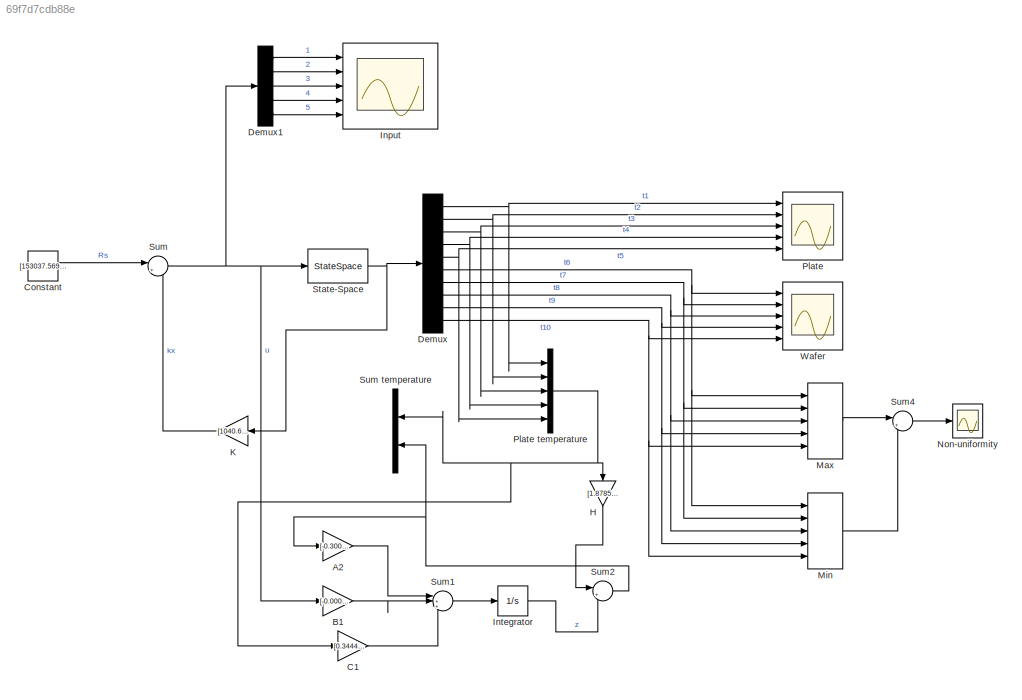
MODEL slx_69f7d7cdb88e
KIND model
CONFIG AbsTol = auto
CONFIG EnableMultiTasking = off
CONFIG FixedStep = auto
CONFIG MaxStep = auto
CONFIG MinStep = auto
CONFIG RelTol = 1e-6
CONFIG SampleTimeConstraint = Unconstrained
CONFIG SolverName = VariableStepAuto
CONFIG StartTime = 0.0
CONFIG StopTime = 500
BLOCK [Gain] A2
  Gain = [-0.300000000000000 0 0 0 0;0 -0.300000000000000 -6.93889390390723e-18 0 0;0 6.93889390390723e-18 -0.300000000000000 0 0;0 0 0 -0.300000000000000 6.93889390390723e-18;0 0 0 -3.46944695195361e-18 -0.300000000000000]
  Multiplication = Matrix(K*u)
BLOCK [Gain] B1
  Gain = [-0.000436741821281746 -0.000201465857250265 0 0 0;-6.71552857500885e-05 -0.000426624199007793 -0.000144428193774131 0 0;0 -8.66569162644783e-05 -0.000419989912703969 -0.000131560849563564 0;0 0 -9.39720354025459e-05 -0.000418421215569420 -0.000125814427560046;0 0 0 -9.78556658800356e-05 -0.000539793091271870;]
  Multiplication = Matrix(K*u)
BLOCK [Gain] C1
  Gain = [0.344431301747057 -0.0117512821095320 -0.0385532259236173 0 0;-0.00391709403651067 0.328438474570554 -0.00521863281406086 -0.0251759540060748 0;-0.00771064518472346 -0.00313117968843653 0.330223715802212 -0.00332379586198954 -0.0219313013531552;0 -0.0107896945740321 -0.00237413990142110 0.330533705208892 -0.0231878429325686;0 0 -0.0121840563073084 -0.0180054811749444 0.324419165896115]
  Multiplication = Matrix(K*u)
BLOCK [Constant] Constant
  Value = [153037.569562540;-33139.2843468048;45321.8245165428;210076.349949157;315904.445607473]
BLOCK [Demux] Demux
  Outputs = 10
  Ports = [1, 10]
BLOCK [Demux] Demux1
  Outputs = 5
  Ports = [1, 5]
BLOCK [Gain] H
  Gain = [1.87857401737166 0.866572666906799 0 0 0;0.288857555635600 1.83505470826210 0.621234420380753 0 0;0 0.372740652228452 1.80651840313430 0.565887628915702 0;0 0 0.404205449225502 1.79977090716645 0.541170327886501;0 0 0 0.420910255022834 2.32183231970792]
  Multiplication = Matrix(K*u)
BLOCK [Scope] Input
  Floating = off
  NumInputPorts = 5
  Ports = [5]
  ScopeSpecificationString = Simulink.scopes.TimeScopeBlockCfg('CurrentConfiguration', extmgr.ConfigurationSet(extmgr.Configuration('Core','General UI',true),extmgr.Configuration('Core','Source UI',true),extmgr.Configuration('Sources','WiredSimulink',true,'DataLoggingVariableName','ScopeData2'),extmgr.Configuration('Visuals','Time Domain',true,'SerializedDisplays',{struct('MinYLimReal','92.11958','MaxYLimReal','9990.62928','Y...<+1434ch>
BLOCK [Integrator] Integrator
  Ports = [1, 1]
BLOCK [Gain] K
  Gain = [1040.62101454270 -320.306170322634 -59.2252313244026 227.958918565248 240.894856638426 372.138527897946 -370.696546217003 -193.562742645483 152.368074523857 243.750083253837;-395.036959442210 1445.41180545318 3.18106966337142 -126.523424745173 -46.0693531161156 -197.976432827956 288.642703261052 -443.711626792953 -527.966761706448 -347.879849156491;294.427032872561 98.6952411671996 1588.824335740...<+476ch>
  Multiplication = Matrix(K*u)
BLOCK [MinMax] Max
  Function = max
  Inputs = 5
  Ports = [5, 1]
BLOCK [MinMax] Min
  Inputs = 5
  Ports = [5, 1]
BLOCK [Scope] Non-uniformity
  Floating = off
  NumInputPorts = 1
  Ports = [1]
  ScopeSpecificationString = Simulink.scopes.TimeScopeBlockCfg('CurrentConfiguration', extmgr.ConfigurationSet(extmgr.Configuration('Core','General UI',true),extmgr.Configuration('Core','Source UI',true),extmgr.Configuration('Sources','WiredSimulink',true,'DataLoggingVariableName','ScopeData1'),extmgr.Configuration('Visuals','Time Domain',true,'SerializedDisplays',{struct('MinYLimReal','-3.17621','MaxYLimReal','28.58593','YLa...<+1460ch>
BLOCK [Scope] Plate
  Floating = off
  NumInputPorts = 5
  Ports = [5]
  ScopeSpecificationString = Simulink.scopes.TimeScopeBlockCfg('CurrentConfiguration', extmgr.ConfigurationSet(extmgr.Configuration('Core','General UI',true),extmgr.Configuration('Core','Source UI',true),extmgr.Configuration('Sources','WiredSimulink',true),extmgr.Configuration('Visuals','Time Domain',true,'SerializedDisplays',{struct('MinYLimReal','89.43063','MaxYLimReal','169.72871','YLabelReal','','MinYLimMag','89.43063','M...<+1748ch>
BLOCK [Mux] Plate temperature
  DisplayOption = bar
  Inputs = 5
  Ports = [5, 1]
BLOCK [StateSpace] State-Space
  A = [-0.117855659679215 0.0620590628252506 0 0 0 0.0557965968539647 0 0 0 0;0.0206863542750835 -0.120972267946796 0.0444893168177479 0 0 0 0.0557965968539647 0 0 0;0 0.0266935900906488 -0.123015877698588 0.0405256907539742 0 0 0 0.0557965968539647 0 0;0 0 0.0289469219671245 -0.123499095427663 0.0387555766065743 0 0 0 0.0557965968539647 0;0 0 0 0.0301432262495578 -0.0860418872487965 0 0 0 0 0.055796596...<+409ch>
  B = [0.000232485820224853 0 0 0 0;0 0.000232485820224853 0 0 0;0 0 0.000232485820224853 0 0;0 0 0 0.000232485820224853 0;0 0 0 0 0.000232485820224853;0 0 0 0 0;0 0 0 0 0;0 0 0 0 0;0 0 0 0 0;0 0 0 0 0]
  C = [1 0 0 0 0 0 0 0 0 0;0 1 0 0 0 0 0 0 0 0;0 0 1 0 0 0 0 0 0 0;0 0 0 1 0 0 0 0 0 0;0 0 0 0 1 0 0 0 0 0;0 0 0 0 0 1 0 0 0 0;0 0 0 0 0 0 1 0 0 0;0 0 0 0 0 0 0 1 0 0;0 0 0 0 0 0 0 0 1 0;0 0 0 0 0 0 0 0 0 1]
  D = [0 0 0 0 0;0 0 0 0 0;0 0 0 0 0;0 0 0 0 0;0 0 0 0 0;0 0 0 0 0;0 0 0 0 0;0 0 0 0 0;0 0 0 0 0;0 0 0 0 0]
  InitialCondition = [114.583333333333;114.583333333333;114.583333333333;114.583333333333;114.688014403292;25;25;25;25;25]
  Ports = [1, 1]
BLOCK [Sum] Sum
  Inputs = |+-
  Ports = [2, 1]
BLOCK [Mux] Sum temperature
  DisplayOption = bar
  Inputs = 2
  NameLocation = top
  Ports = [2, 1]
BLOCK [Sum] Sum1
  Inputs = |+++
  Ports = [3, 1]
BLOCK [Sum] Sum2
  Inputs = |++
  Ports = [2, 1]
BLOCK [Sum] Sum4
  Inputs = |+-
  Ports = [2, 1]
BLOCK [Scope] Wafer
  Floating = off
  NumInputPorts = 5
  Ports = [5]
  ScopeSpecificationString = Simulink.scopes.TimeScopeBlockCfg('CurrentConfiguration', extmgr.ConfigurationSet(extmgr.Configuration('Core','General UI',true),extmgr.Configuration('Core','Source UI',true),extmgr.Configuration('Sources','WiredSimulink',true,'DataLoggingVariableName','ScopeData3'),extmgr.Configuration('Visuals','Time Domain',true,'SerializedDisplays',{struct('MinYLimReal','13.7477','MaxYLimReal','126.27067','YLa...<+1813ch>
LINE A2:1 -> Sum1:1
LINE B1:1 -> Sum1:2
LINE C1:1 -> Sum1:3
LINE Constant:1 -> Sum:1
LINE Demux1:1 -> Input:1
LINE Demux1:2 -> Input:2
LINE Demux1:3 -> Input:3
LINE Demux1:4 -> Input:4
LINE Demux1:5 -> Input:5
NET Demux:1 -> Plate temperature:1, Plate:1
NET Demux:10 -> Max:5, Min:5, Wafer:5
NET Demux:2 -> Plate temperature:2, Plate:2
NET Demux:3 -> Plate temperature:3, Plate:3
NET Demux:4 -> Plate temperature:4, Plate:4
NET Demux:5 -> Plate temperature:5, Plate:5
NET Demux:6 -> Max:1, Min:1, Wafer:1
NET Demux:7 -> Max:2, Min:2, Wafer:2
NET Demux:8 -> Max:3, Min:3, Wafer:3
NET Demux:9 -> Max:4, Min:4, Wafer:4
LINE H:1 -> Sum2:1
LINE Integrator:1 -> Sum2:2
LINE K:1 -> Sum:2
LINE Max:1 -> Sum4:1
LINE Min:1 -> Sum4:2
NET Plate temperature:1 -> C1:1, H:1, Sum temperature:1
NET State-Space:1 -> Demux:1, K:1
LINE Sum1:1 -> Integrator:1
NET Sum2:1 -> A2:1, Sum temperature:2
LINE Sum4:1 -> Non-uniformity:1
NET Sum:1 -> B1:1, Demux1:1, State-Space:1
note: NET lines group one-source signal fan-out (src -> all destinations, sorted); 1:1 wires keep LINE
